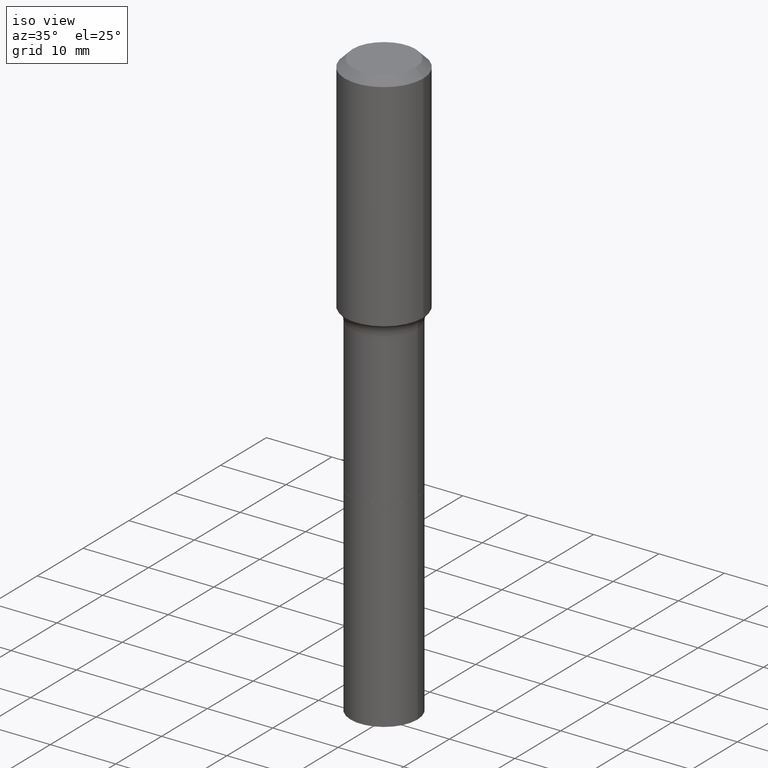
[diagram: clean part render]
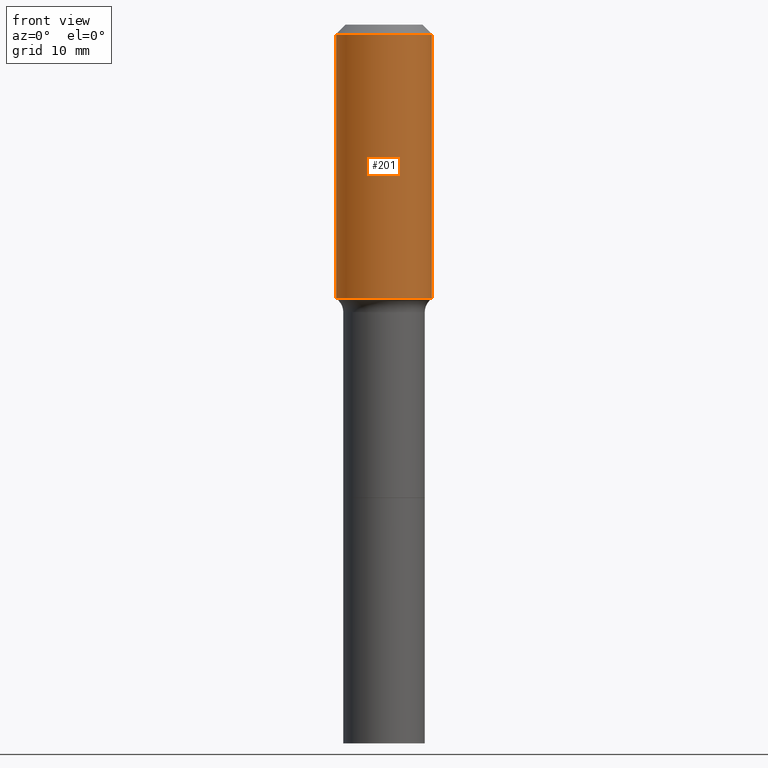
[diagram: tour spotlight — one face highlighted and labeled with its STEP entity id]
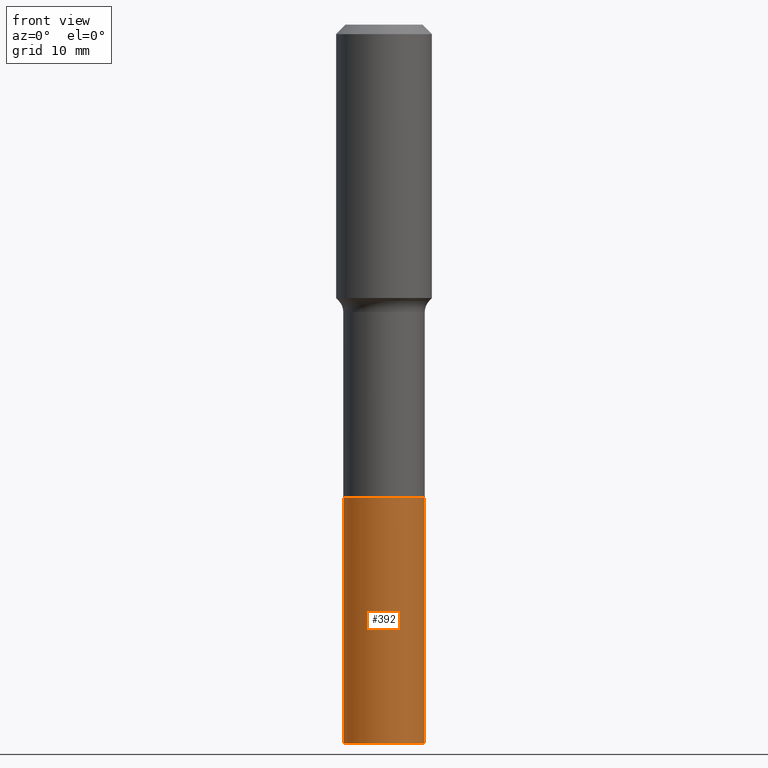
[diagram: tour spotlight — one face highlighted and labeled with its STEP entity id]
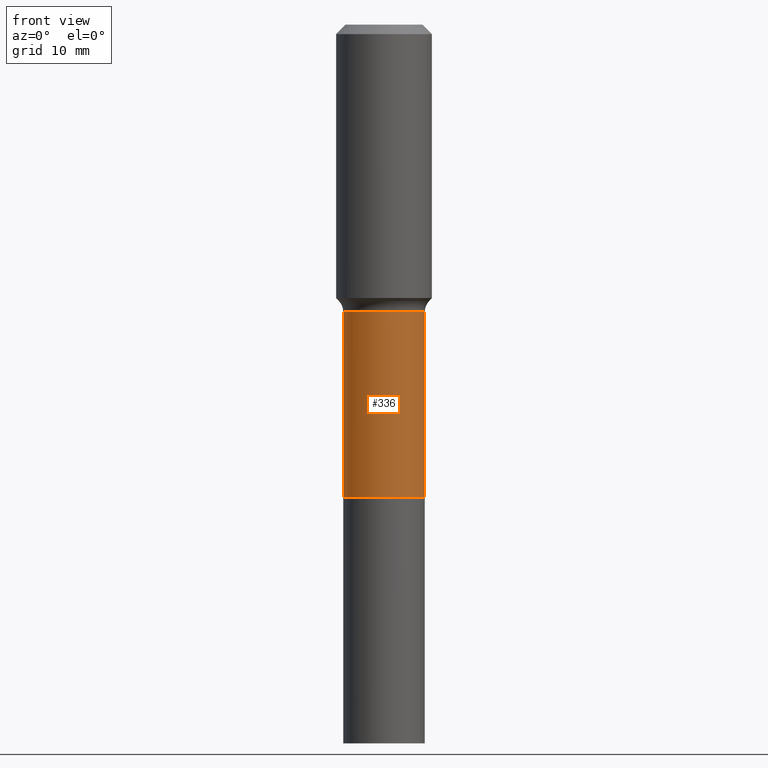
[diagram: tour spotlight — one face highlighted and labeled with its STEP entity id]
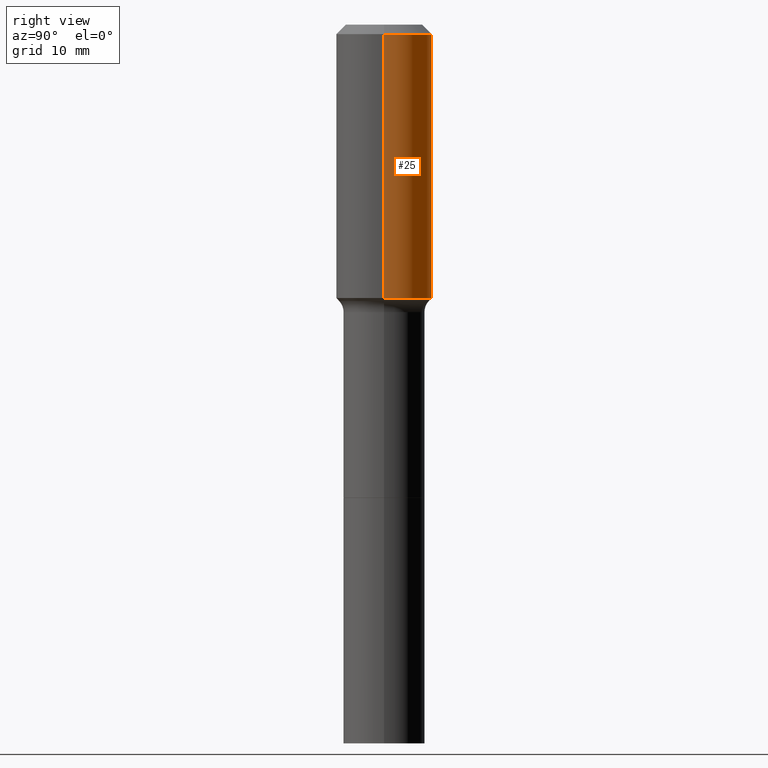
[diagram: tour spotlight — one face highlighted and labeled with its STEP entity id]
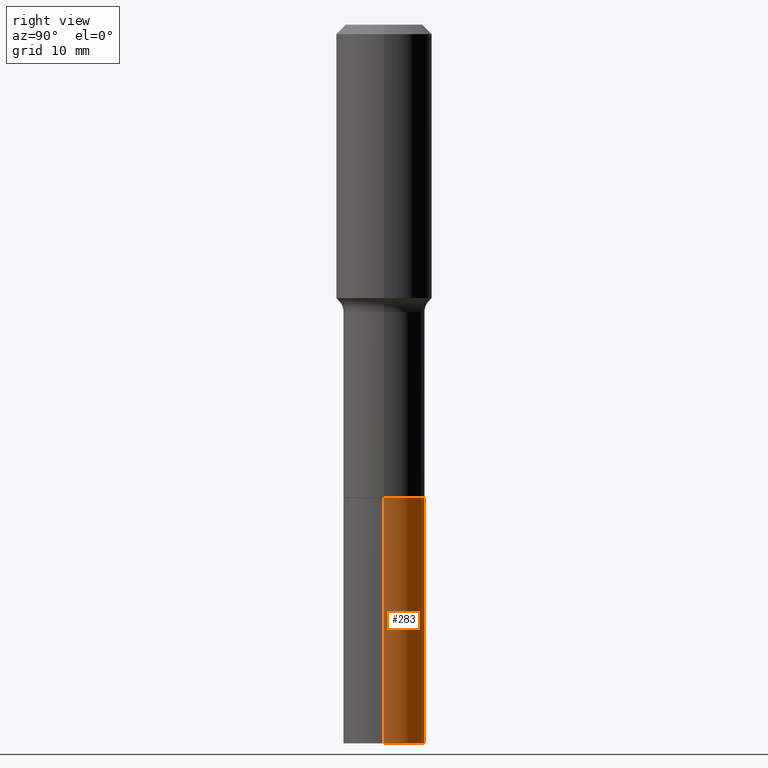
[diagram: tour spotlight — one face highlighted and labeled with its STEP entity id]
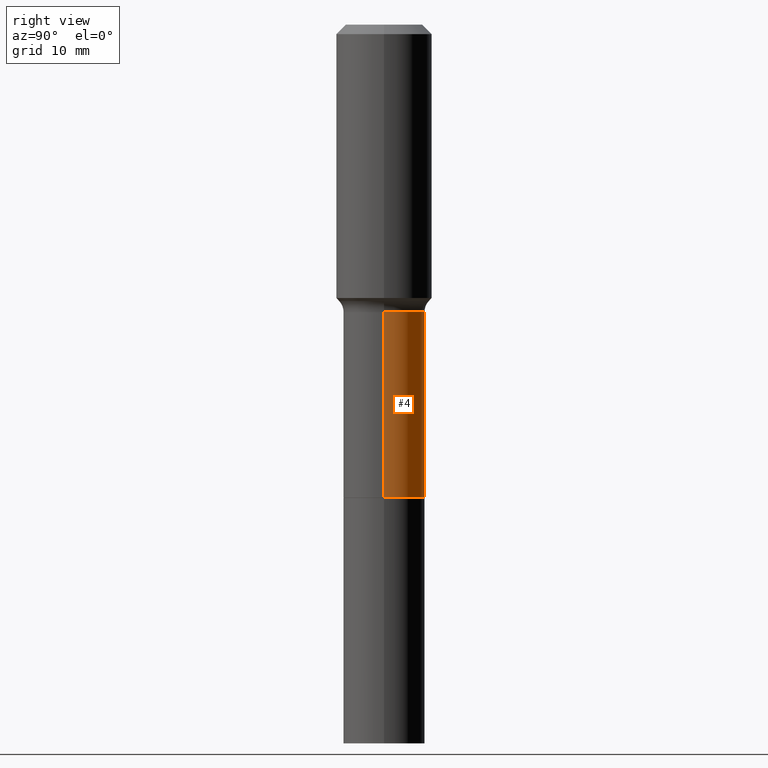
[diagram: tour spotlight — one face highlighted and labeled with its STEP entity id]
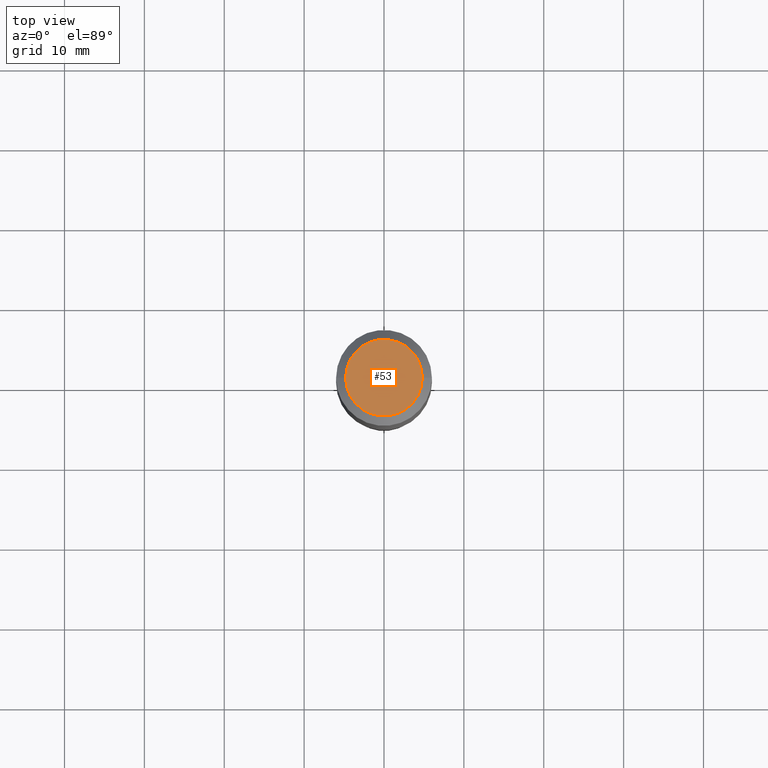
[diagram: tour spotlight — one face highlighted and labeled with its STEP entity id]
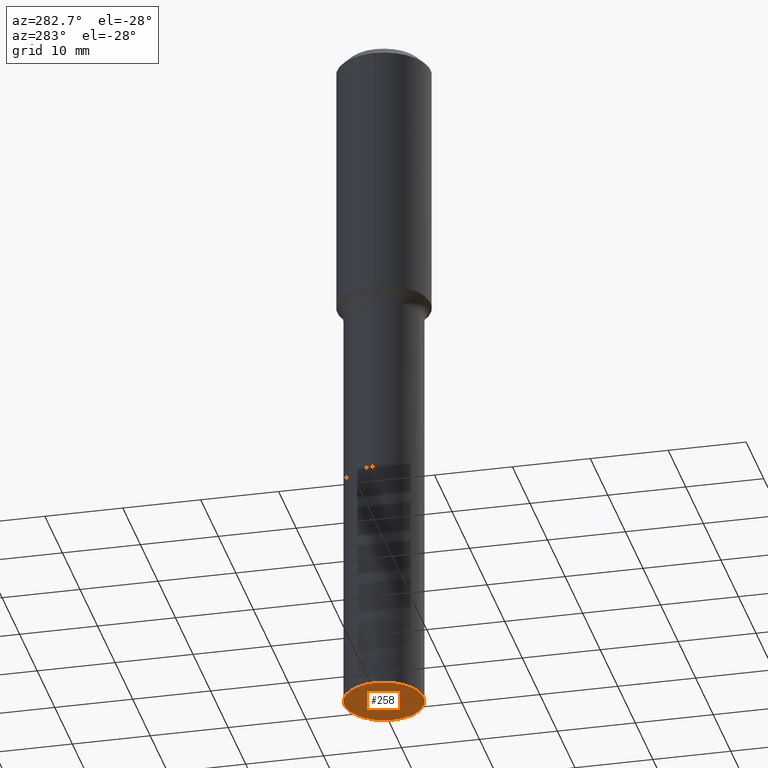
[diagram: tour spotlight — one face highlighted and labeled with its STEP entity id]
A machine part: a face-by-face anatomy tour. The part has 18 B-rep faces; the first image is the clean iso view, then the 8 largest visible faces are spotlighted one at a time (largest first), each with its STEP entity span.

Face 1 — front view, entity #201. In plain terms, the highlighted cylindrical surface (partial cylindrical patch) has radius 5.9995 mm, axis along (-0, 0, 1).
Definition (entity closure, byte-faithful):
#1 = DIRECTION ( 'NONE',  ( 1.000000000000000000, -6.982962677686266711E-15, 0.000000000000000000 ) ) ;
#22 = VECTOR ( 'NONE', #229, 39.37007874015748143 ) ;
#33 = CARTESIAN_POINT ( 'NONE',  ( -0.2362000000000000766, 1.678301941865357183E-15, -1.161852468318209177E-29 ) ) ;
#43 = VECTOR ( 'NONE', #322, 39.37007874015748143 ) ;
#51 = ORIENTED_EDGE ( 'NONE', *, *, #173, .T. ) ;
#63 = ORIENTED_EDGE ( 'NONE', *, *, #71, .F. ) ;
#71 = EDGE_CURVE ( 'NONE', #369, #244, #97, .T. ) ;
#73 = DIRECTION ( 'NONE',  ( -2.445468806185136597E-29, 3.491481338843145583E-15, 1.000000000000000000 ) ) ;
#74 = EDGE_LOOP ( 'NONE', ( #80, #51, #304, #63 ) ) ;
#78 = CARTESIAN_POINT ( 'NONE',  ( 0.2362000000000001598, -6.355282701014003885E-15, -1.347825309615930500 ) ) ;
#80 = ORIENTED_EDGE ( 'NONE', *, *, #178, .F. ) ;
#81 = CARTESIAN_POINT ( 'NONE',  ( 1.155239464041865331E-30, -1.649375784469511612E-16, -0.04724000000000027483 ) ) ;
#97 = CIRCLE ( 'NONE', #303, 0.2361999999999999933 ) ;
#111 = CARTESIAN_POINT ( 'NONE',  ( 3.296064750852582441E-29, -4.705906916544506571E-15, -1.347825309615930500 ) ) ;
#145 = CARTESIAN_POINT ( 'NONE',  ( 0.000000000000000000, 0.000000000000000000, 0.000000000000000000 ) ) ;
#156 = CARTESIAN_POINT ( 'NONE',  ( -0.2361999999999999933, -7.571203056303714610E-16, -0.04724000000000027483 ) ) ;
#173 = EDGE_CURVE ( 'NONE', #199, #325, #474, .T. ) ;
#178 = EDGE_CURVE ( 'NONE', #199, #369, #314, .T. ) ;
#199 = VERTEX_POINT ( 'NONE', #468 ) ;
#201 = ADVANCED_FACE ( 'NONE', ( #312 ), #345, .T. ) ;
#202 = CARTESIAN_POINT ( 'NONE',  ( 0.2362000000000000766, -1.649375784469496722E-15, 1.151752954443000368E-29 ) ) ;
#229 = DIRECTION ( 'NONE',  ( -2.445468806185136877E-29, 3.491481338843145188E-15, 1.000000000000000000 ) ) ;
#244 = VERTEX_POINT ( 'NONE', #514 ) ;
#270 = DIRECTION ( 'NONE',  ( 1.000000000000000000, -6.982962677686268288E-15, 0.000000000000000000 ) ) ;
#303 = AXIS2_PLACEMENT_3D ( 'NONE', #81, #364, #1 ) ;
#304 = ORIENTED_EDGE ( 'NONE', *, *, #373, .T. ) ;
#312 = FACE_OUTER_BOUND ( 'NONE', #74, .T. ) ;
#314 = LINE ( 'NONE', #33, #22 ) ;
#322 = DIRECTION ( 'NONE',  ( -2.445468806185136877E-29, 3.491481338843145188E-15, 1.000000000000000000 ) ) ;
#325 = VERTEX_POINT ( 'NONE', #78 ) ;
#345 = CYLINDRICAL_SURFACE ( 'NONE', #426, 0.2362000000000000766 ) ;
#364 = DIRECTION ( 'NONE',  ( -2.445468806185136597E-29, 3.491481338843145583E-15, 1.000000000000000000 ) ) ;
#367 = LINE ( 'NONE', #202, #43 ) ;
#369 = VERTEX_POINT ( 'NONE', #156 ) ;
#373 = EDGE_CURVE ( 'NONE', #325, #244, #367, .T. ) ;
#383 = DIRECTION ( 'NONE',  ( 1.000000000000000000, -6.982962677686266711E-15, 4.876176775795935793E-29 ) ) ;
#395 = AXIS2_PLACEMENT_3D ( 'NONE', #111, #73, #270 ) ;
#426 = AXIS2_PLACEMENT_3D ( 'NONE', #145, #517, #383 ) ;
#468 = CARTESIAN_POINT ( 'NONE',  ( -0.2362000000000001598, -3.027604974679148599E-15, -1.347825309615930500 ) ) ;
#474 = CIRCLE ( 'NONE', #395, 0.2362000000000001598 ) ;
#514 = CARTESIAN_POINT ( 'NONE',  ( 0.2361999999999999933, -1.814313362916447440E-15, -0.04724000000000027483 ) ) ;
#517 = DIRECTION ( 'NONE',  ( -2.445468806185136597E-29, 3.491481338843145583E-15, 1.000000000000000000 ) ) ;

Face 2 — front view, entity #392. In plain terms, the highlighted cylindrical surface (partial cylindrical patch) has radius 5.1003 mm, axis along (-0, 0, 1).
Definition (entity closure, byte-faithful):
#10 = DIRECTION ( 'NONE',  ( 1.000000000000000000, -6.982962677686268288E-15, 0.000000000000000000 ) ) ;
#14 = FACE_OUTER_BOUND ( 'NONE', #172, .T. ) ;
#19 = CARTESIAN_POINT ( 'NONE',  ( -0.2008000000000001173, -6.716412113177584804E-15, -2.332299999999999596 ) ) ;
#26 = AXIS2_PLACEMENT_3D ( 'NONE', #486, #198, #410 ) ;
#42 = ORIENTED_EDGE ( 'NONE', *, *, #309, .F. ) ;
#77 = ORIENTED_EDGE ( 'NONE', *, *, #164, .T. ) ;
#84 = VERTEX_POINT ( 'NONE', #155 ) ;
#96 = DIRECTION ( 'NONE',  ( -2.445468806185136877E-29, 3.491481338843145188E-15, 1.000000000000000000 ) ) ;
#101 = ORIENTED_EDGE ( 'NONE', *, *, #423, .T. ) ;
#122 = CIRCLE ( 'NONE', #26, 0.2008000000000000063 ) ;
#133 = CARTESIAN_POINT ( 'NONE',  ( 0.2008000000000002283, -1.377354473360231923E-14, -3.543299999999999894 ) ) ;
#155 = CARTESIAN_POINT ( 'NONE',  ( -0.2008000000000002283, -8.830504063847108456E-15, -3.543299999999999894 ) ) ;
#160 = ORIENTED_EDGE ( 'NONE', *, *, #479, .F. ) ;
#164 = EDGE_CURVE ( 'NONE', #329, #385, #476, .T. ) ;
#167 = DIRECTION ( 'NONE',  ( -2.445468806185136597E-29, 3.491481338843145583E-15, 1.000000000000000000 ) ) ;
#172 = EDGE_LOOP ( 'NONE', ( #160, #101, #77, #42 ) ) ;
#176 = CARTESIAN_POINT ( 'NONE',  ( -0.2008000000000000063, -8.830504063847110034E-15, -2.332299999999999596 ) ) ;
#198 = DIRECTION ( 'NONE',  ( -2.445468806185136597E-29, 3.491481338843145583E-15, 1.000000000000000000 ) ) ;
#236 = CARTESIAN_POINT ( 'NONE',  ( 5.703566896665592781E-29, -8.143181926583866613E-15, -2.332299999999999596 ) ) ;
#261 = DIRECTION ( 'NONE',  ( -2.445468806185136877E-29, 3.491481338843145188E-15, 1.000000000000000000 ) ) ;
#309 = EDGE_CURVE ( 'NONE', #481, #385, #122, .T. ) ;
#317 = CYLINDRICAL_SURFACE ( 'NONE', #334, 0.2008000000000001173 ) ;
#323 = CIRCLE ( 'NONE', #401, 0.2008000000000002283 ) ;
#327 = DIRECTION ( 'NONE',  ( 1.000000000000000000, -6.982962677686264344E-15, 0.000000000000000000 ) ) ;
#329 = VERTEX_POINT ( 'NONE', #133 ) ;
#334 = AXIS2_PLACEMENT_3D ( 'NONE', #236, #365, #10 ) ;
#365 = DIRECTION ( 'NONE',  ( -2.445468806185136597E-29, 3.491481338843145583E-15, 1.000000000000000000 ) ) ;
#375 = LINE ( 'NONE', #19, #432 ) ;
#385 = VERTEX_POINT ( 'NONE', #453 ) ;
#389 = CARTESIAN_POINT ( 'NONE',  ( 0.2008000000000001173, -9.545360832263270345E-15, -2.332299999999999596 ) ) ;
#392 = ADVANCED_FACE ( 'NONE', ( #14 ), #317, .T. ) ;
#401 = AXIS2_PLACEMENT_3D ( 'NONE', #404, #167, #327 ) ;
#404 = CARTESIAN_POINT ( 'NONE',  ( 8.665029620955794069E-29, -1.237136582792291707E-14, -3.543299999999999894 ) ) ;
#408 = VECTOR ( 'NONE', #261, 39.37007874015748143 ) ;
#410 = DIRECTION ( 'NONE',  ( 1.000000000000000000, -6.982962677686262766E-15, 0.000000000000000000 ) ) ;
#423 = EDGE_CURVE ( 'NONE', #84, #329, #323, .T. ) ;
#432 = VECTOR ( 'NONE', #96, 39.37007874015748143 ) ;
#453 = CARTESIAN_POINT ( 'NONE',  ( 0.2008000000000000063, -9.545360832263268767E-15, -2.332299999999999596 ) ) ;
#476 = LINE ( 'NONE', #389, #408 ) ;
#479 = EDGE_CURVE ( 'NONE', #84, #481, #375, .T. ) ;
#481 = VERTEX_POINT ( 'NONE', #176 ) ;
#486 = CARTESIAN_POINT ( 'NONE',  ( 5.703566896665592781E-29, -8.143181926583866613E-15, -2.332299999999999596 ) ) ;

Face 3 — front view, entity #336. In plain terms, the highlighted cylindrical surface (partial cylindrical patch) has radius 5.1003 mm, axis along (-0, 0, 1).
Definition (entity closure, byte-faithful):
#17 = CIRCLE ( 'NONE', #255, 0.2007999999999999785 ) ;
#36 = CARTESIAN_POINT ( 'NONE',  ( 0.2007999999999999230, -6.350655407221791807E-15, -1.417300000000000004 ) ) ;
#47 = VERTEX_POINT ( 'NONE', #297 ) ;
#49 = EDGE_CURVE ( 'NONE', #230, #47, #17, .T. ) ;
#50 = CARTESIAN_POINT ( 'NONE',  ( -0.2007999999999999508, 1.426769813406280823E-15, -9.877221661231847184E-30 ) ) ;
#52 = DIRECTION ( 'NONE',  ( -2.445468806185136877E-29, 3.491481338843145188E-15, 1.000000000000000000 ) ) ;
#65 = CIRCLE ( 'NONE', #411, 0.2007999999999999230 ) ;
#82 = CARTESIAN_POINT ( 'NONE',  ( 0.2007999999999999508, -1.402178905679401956E-15, 9.791362965798235507E-30 ) ) ;
#90 = DIRECTION ( 'NONE',  ( 1.000000000000000000, -6.982962677686266711E-15, 4.876176775795935232E-29 ) ) ;
#100 = DIRECTION ( 'NONE',  ( -2.445468806185136597E-29, 3.491481338843145583E-15, 1.000000000000000000 ) ) ;
#116 = CARTESIAN_POINT ( 'NONE',  ( -0.2007999999999999230, -5.118186530322137150E-15, -1.417300000000000004 ) ) ;
#127 = LINE ( 'NONE', #50, #206 ) ;
#161 = DIRECTION ( 'NONE',  ( 1.000000000000000000, -6.982962677686265133E-15, 0.000000000000000000 ) ) ;
#183 = VERTEX_POINT ( 'NONE', #36 ) ;
#196 = CARTESIAN_POINT ( 'NONE',  ( 0.000000000000000000, 0.000000000000000000, 0.000000000000000000 ) ) ;
#206 = VECTOR ( 'NONE', #52, 39.37007874015748143 ) ;
#208 = DIRECTION ( 'NONE',  ( -2.445468806185136597E-29, 3.491481338843145583E-15, 1.000000000000000000 ) ) ;
#213 = EDGE_LOOP ( 'NONE', ( #435, #405, #477, #501 ) ) ;
#230 = VERTEX_POINT ( 'NONE', #386 ) ;
#240 = DIRECTION ( 'NONE',  ( -2.445468806185136877E-29, 3.491481338843145188E-15, 1.000000000000000000 ) ) ;
#253 = VECTOR ( 'NONE', #240, 39.37007874015748143 ) ;
#255 = AXIS2_PLACEMENT_3D ( 'NONE', #460, #100, #458 ) ;
#268 = AXIS2_PLACEMENT_3D ( 'NONE', #196, #281, #90 ) ;
#273 = CARTESIAN_POINT ( 'NONE',  ( 3.465962939006193759E-29, -4.948476501542390442E-15, -1.417300000000000004 ) ) ;
#281 = DIRECTION ( 'NONE',  ( -2.445468806185136597E-29, 3.491481338843145583E-15, 1.000000000000000000 ) ) ;
#297 = CARTESIAN_POINT ( 'NONE',  ( 0.2007999999999999785, -9.543615091593848052E-15, -2.331799999999999873 ) ) ;
#324 = EDGE_CURVE ( 'NONE', #362, #183, #65, .T. ) ;
#336 = ADVANCED_FACE ( 'NONE', ( #440 ), #407, .T. ) ;
#341 = EDGE_CURVE ( 'NONE', #230, #362, #127, .T. ) ;
#362 = VERTEX_POINT ( 'NONE', #116 ) ;
#386 = CARTESIAN_POINT ( 'NONE',  ( -0.2007999999999999785, -5.118186530322137150E-15, -2.331799999999999873 ) ) ;
#402 = LINE ( 'NONE', #82, #253 ) ;
#405 = ORIENTED_EDGE ( 'NONE', *, *, #49, .T. ) ;
#406 = EDGE_CURVE ( 'NONE', #47, #183, #402, .T. ) ;
#407 = CYLINDRICAL_SURFACE ( 'NONE', #268, 0.2007999999999999508 ) ;
#411 = AXIS2_PLACEMENT_3D ( 'NONE', #273, #208, #161 ) ;
#435 = ORIENTED_EDGE ( 'NONE', *, *, #341, .F. ) ;
#440 = FACE_OUTER_BOUND ( 'NONE', #213, .T. ) ;
#458 = DIRECTION ( 'NONE',  ( 1.000000000000000000, -6.982962677686263555E-15, 0.000000000000000000 ) ) ;
#460 = CARTESIAN_POINT ( 'NONE',  ( 5.702344162262501100E-29, -8.141436185914445899E-15, -2.331799999999999873 ) ) ;
#477 = ORIENTED_EDGE ( 'NONE', *, *, #406, .T. ) ;
#501 = ORIENTED_EDGE ( 'NONE', *, *, #324, .F. ) ;

Face 4 — right view, entity #25. In plain terms, the highlighted cylindrical surface (partial cylindrical patch) has radius 5.9995 mm, axis along (-0, 0, 1).
Definition (entity closure, byte-faithful):
#5 = CARTESIAN_POINT ( 'NONE',  ( 3.296064750852582441E-29, -4.705906916544506571E-15, -1.347825309615930500 ) ) ;
#9 = ORIENTED_EDGE ( 'NONE', *, *, #274, .F. ) ;
#22 = VECTOR ( 'NONE', #229, 39.37007874015748143 ) ;
#25 = ADVANCED_FACE ( 'NONE', ( #421 ), #335, .T. ) ;
#33 = CARTESIAN_POINT ( 'NONE',  ( -0.2362000000000000766, 1.678301941865357183E-15, -1.161852468318209177E-29 ) ) ;
#35 = DIRECTION ( 'NONE',  ( -2.445468806185136597E-29, 3.491481338843145583E-15, 1.000000000000000000 ) ) ;
#43 = VECTOR ( 'NONE', #322, 39.37007874015748143 ) ;
#78 = CARTESIAN_POINT ( 'NONE',  ( 0.2362000000000001598, -6.355282701014003885E-15, -1.347825309615930500 ) ) ;
#129 = CARTESIAN_POINT ( 'NONE',  ( 0.000000000000000000, 0.000000000000000000, 0.000000000000000000 ) ) ;
#130 = AXIS2_PLACEMENT_3D ( 'NONE', #129, #259, #286 ) ;
#144 = CIRCLE ( 'NONE', #437, 0.2361999999999999933 ) ;
#156 = CARTESIAN_POINT ( 'NONE',  ( -0.2361999999999999933, -7.571203056303714610E-16, -0.04724000000000027483 ) ) ;
#178 = EDGE_CURVE ( 'NONE', #199, #369, #314, .T. ) ;
#190 = DIRECTION ( 'NONE',  ( 1.000000000000000000, -6.982962677686266711E-15, 0.000000000000000000 ) ) ;
#199 = VERTEX_POINT ( 'NONE', #468 ) ;
#202 = CARTESIAN_POINT ( 'NONE',  ( 0.2362000000000000766, -1.649375784469496722E-15, 1.151752954443000368E-29 ) ) ;
#229 = DIRECTION ( 'NONE',  ( -2.445468806185136877E-29, 3.491481338843145188E-15, 1.000000000000000000 ) ) ;
#244 = VERTEX_POINT ( 'NONE', #514 ) ;
#259 = DIRECTION ( 'NONE',  ( -2.445468806185136597E-29, 3.491481338843145583E-15, 1.000000000000000000 ) ) ;
#274 = EDGE_CURVE ( 'NONE', #244, #369, #144, .T. ) ;
#282 = ORIENTED_EDGE ( 'NONE', *, *, #178, .T. ) ;
#284 = DIRECTION ( 'NONE',  ( 1.000000000000000000, -6.982962677686268288E-15, 0.000000000000000000 ) ) ;
#286 = DIRECTION ( 'NONE',  ( 1.000000000000000000, -6.982962677686266711E-15, 4.876176775795935793E-29 ) ) ;
#308 = CARTESIAN_POINT ( 'NONE',  ( 1.155239464041865331E-30, -1.649375784469511612E-16, -0.04724000000000027483 ) ) ;
#313 = AXIS2_PLACEMENT_3D ( 'NONE', #5, #493, #284 ) ;
#314 = LINE ( 'NONE', #33, #22 ) ;
#322 = DIRECTION ( 'NONE',  ( -2.445468806185136877E-29, 3.491481338843145188E-15, 1.000000000000000000 ) ) ;
#325 = VERTEX_POINT ( 'NONE', #78 ) ;
#335 = CYLINDRICAL_SURFACE ( 'NONE', #130, 0.2362000000000000766 ) ;
#367 = LINE ( 'NONE', #202, #43 ) ;
#369 = VERTEX_POINT ( 'NONE', #156 ) ;
#373 = EDGE_CURVE ( 'NONE', #325, #244, #367, .T. ) ;
#382 = ORIENTED_EDGE ( 'NONE', *, *, #373, .F. ) ;
#421 = FACE_OUTER_BOUND ( 'NONE', #431, .T. ) ;
#429 = EDGE_CURVE ( 'NONE', #325, #199, #478, .T. ) ;
#431 = EDGE_LOOP ( 'NONE', ( #506, #282, #9, #382 ) ) ;
#437 = AXIS2_PLACEMENT_3D ( 'NONE', #308, #35, #190 ) ;
#468 = CARTESIAN_POINT ( 'NONE',  ( -0.2362000000000001598, -3.027604974679148599E-15, -1.347825309615930500 ) ) ;
#478 = CIRCLE ( 'NONE', #313, 0.2362000000000001598 ) ;
#493 = DIRECTION ( 'NONE',  ( -2.445468806185136597E-29, 3.491481338843145583E-15, 1.000000000000000000 ) ) ;
#506 = ORIENTED_EDGE ( 'NONE', *, *, #429, .T. ) ;
#514 = CARTESIAN_POINT ( 'NONE',  ( 0.2361999999999999933, -1.814313362916447440E-15, -0.04724000000000027483 ) ) ;

Face 5 — right view, entity #283. In plain terms, the highlighted cylindrical surface (partial cylindrical patch) has radius 5.1003 mm, axis along (-0, 0, 1).
Definition (entity closure, byte-faithful):
#19 = CARTESIAN_POINT ( 'NONE',  ( -0.2008000000000001173, -6.716412113177584804E-15, -2.332299999999999596 ) ) ;
#44 = DIRECTION ( 'NONE',  ( -2.445468806185136597E-29, 3.491481338843145583E-15, 1.000000000000000000 ) ) ;
#84 = VERTEX_POINT ( 'NONE', #155 ) ;
#92 = AXIS2_PLACEMENT_3D ( 'NONE', #231, #246, #205 ) ;
#96 = DIRECTION ( 'NONE',  ( -2.445468806185136877E-29, 3.491481338843145188E-15, 1.000000000000000000 ) ) ;
#119 = CARTESIAN_POINT ( 'NONE',  ( 5.703566896665592781E-29, -8.143181926583866613E-15, -2.332299999999999596 ) ) ;
#123 = DIRECTION ( 'NONE',  ( 1.000000000000000000, -6.982962677686268288E-15, 0.000000000000000000 ) ) ;
#133 = CARTESIAN_POINT ( 'NONE',  ( 0.2008000000000002283, -1.377354473360231923E-14, -3.543299999999999894 ) ) ;
#155 = CARTESIAN_POINT ( 'NONE',  ( -0.2008000000000002283, -8.830504063847108456E-15, -3.543299999999999894 ) ) ;
#164 = EDGE_CURVE ( 'NONE', #329, #385, #476, .T. ) ;
#176 = CARTESIAN_POINT ( 'NONE',  ( -0.2008000000000000063, -8.830504063847110034E-15, -2.332299999999999596 ) ) ;
#180 = CIRCLE ( 'NONE', #92, 0.2008000000000000063 ) ;
#205 = DIRECTION ( 'NONE',  ( 1.000000000000000000, -6.982962677686262766E-15, 0.000000000000000000 ) ) ;
#231 = CARTESIAN_POINT ( 'NONE',  ( 5.703566896665592781E-29, -8.143181926583866613E-15, -2.332299999999999596 ) ) ;
#243 = DIRECTION ( 'NONE',  ( 1.000000000000000000, -6.982962677686264344E-15, 0.000000000000000000 ) ) ;
#246 = DIRECTION ( 'NONE',  ( -2.445468806185136597E-29, 3.491481338843145583E-15, 1.000000000000000000 ) ) ;
#260 = EDGE_LOOP ( 'NONE', ( #399, #319, #344, #393 ) ) ;
#261 = DIRECTION ( 'NONE',  ( -2.445468806185136877E-29, 3.491481338843145188E-15, 1.000000000000000000 ) ) ;
#279 = CARTESIAN_POINT ( 'NONE',  ( 8.665029620955794069E-29, -1.237136582792291707E-14, -3.543299999999999894 ) ) ;
#283 = ADVANCED_FACE ( 'NONE', ( #470 ), #351, .T. ) ;
#299 = EDGE_CURVE ( 'NONE', #329, #84, #388, .T. ) ;
#319 = ORIENTED_EDGE ( 'NONE', *, *, #479, .T. ) ;
#329 = VERTEX_POINT ( 'NONE', #133 ) ;
#344 = ORIENTED_EDGE ( 'NONE', *, *, #356, .F. ) ;
#351 = CYLINDRICAL_SURFACE ( 'NONE', #512, 0.2008000000000001173 ) ;
#356 = EDGE_CURVE ( 'NONE', #385, #481, #180, .T. ) ;
#375 = LINE ( 'NONE', #19, #432 ) ;
#385 = VERTEX_POINT ( 'NONE', #453 ) ;
#388 = CIRCLE ( 'NONE', #475, 0.2008000000000002283 ) ;
#389 = CARTESIAN_POINT ( 'NONE',  ( 0.2008000000000001173, -9.545360832263270345E-15, -2.332299999999999596 ) ) ;
#393 = ORIENTED_EDGE ( 'NONE', *, *, #164, .F. ) ;
#399 = ORIENTED_EDGE ( 'NONE', *, *, #299, .T. ) ;
#408 = VECTOR ( 'NONE', #261, 39.37007874015748143 ) ;
#432 = VECTOR ( 'NONE', #96, 39.37007874015748143 ) ;
#444 = DIRECTION ( 'NONE',  ( -2.445468806185136597E-29, 3.491481338843145583E-15, 1.000000000000000000 ) ) ;
#453 = CARTESIAN_POINT ( 'NONE',  ( 0.2008000000000000063, -9.545360832263268767E-15, -2.332299999999999596 ) ) ;
#470 = FACE_OUTER_BOUND ( 'NONE', #260, .T. ) ;
#475 = AXIS2_PLACEMENT_3D ( 'NONE', #279, #444, #243 ) ;
#476 = LINE ( 'NONE', #389, #408 ) ;
#479 = EDGE_CURVE ( 'NONE', #84, #481, #375, .T. ) ;
#481 = VERTEX_POINT ( 'NONE', #176 ) ;
#512 = AXIS2_PLACEMENT_3D ( 'NONE', #119, #44, #123 ) ;

Face 6 — right view, entity #4. In plain terms, the highlighted cylindrical surface (partial cylindrical patch) has radius 5.1003 mm, axis along (-0, 0, 1).
Definition (entity closure, byte-faithful):
#4 = ADVANCED_FACE ( 'NONE', ( #454 ), #495, .T. ) ;
#36 = CARTESIAN_POINT ( 'NONE',  ( 0.2007999999999999230, -6.350655407221791807E-15, -1.417300000000000004 ) ) ;
#47 = VERTEX_POINT ( 'NONE', #297 ) ;
#50 = CARTESIAN_POINT ( 'NONE',  ( -0.2007999999999999508, 1.426769813406280823E-15, -9.877221661231847184E-30 ) ) ;
#52 = DIRECTION ( 'NONE',  ( -2.445468806185136877E-29, 3.491481338843145188E-15, 1.000000000000000000 ) ) ;
#56 = DIRECTION ( 'NONE',  ( 1.000000000000000000, -6.982962677686266711E-15, 4.876176775795935232E-29 ) ) ;
#82 = CARTESIAN_POINT ( 'NONE',  ( 0.2007999999999999508, -1.402178905679401956E-15, 9.791362965798235507E-30 ) ) ;
#104 = DIRECTION ( 'NONE',  ( -2.445468806185136597E-29, 3.491481338843145583E-15, 1.000000000000000000 ) ) ;
#116 = CARTESIAN_POINT ( 'NONE',  ( -0.2007999999999999230, -5.118186530322137150E-15, -1.417300000000000004 ) ) ;
#127 = LINE ( 'NONE', #50, #206 ) ;
#136 = EDGE_CURVE ( 'NONE', #183, #362, #419, .T. ) ;
#146 = DIRECTION ( 'NONE',  ( 1.000000000000000000, -6.982962677686263555E-15, 0.000000000000000000 ) ) ;
#183 = VERTEX_POINT ( 'NONE', #36 ) ;
#206 = VECTOR ( 'NONE', #52, 39.37007874015748143 ) ;
#218 = CARTESIAN_POINT ( 'NONE',  ( 3.465962939006193759E-29, -4.948476501542390442E-15, -1.417300000000000004 ) ) ;
#230 = VERTEX_POINT ( 'NONE', #386 ) ;
#240 = DIRECTION ( 'NONE',  ( -2.445468806185136877E-29, 3.491481338843145188E-15, 1.000000000000000000 ) ) ;
#253 = VECTOR ( 'NONE', #240, 39.37007874015748143 ) ;
#257 = AXIS2_PLACEMENT_3D ( 'NONE', #218, #338, #296 ) ;
#262 = CARTESIAN_POINT ( 'NONE',  ( 5.702344162262501100E-29, -8.141436185914445899E-15, -2.331799999999999873 ) ) ;
#265 = EDGE_CURVE ( 'NONE', #47, #230, #463, .T. ) ;
#278 = ORIENTED_EDGE ( 'NONE', *, *, #406, .F. ) ;
#288 = AXIS2_PLACEMENT_3D ( 'NONE', #262, #425, #146 ) ;
#296 = DIRECTION ( 'NONE',  ( 1.000000000000000000, -6.982962677686265133E-15, 0.000000000000000000 ) ) ;
#297 = CARTESIAN_POINT ( 'NONE',  ( 0.2007999999999999785, -9.543615091593848052E-15, -2.331799999999999873 ) ) ;
#332 = EDGE_LOOP ( 'NONE', ( #439, #403, #415, #278 ) ) ;
#338 = DIRECTION ( 'NONE',  ( -2.445468806185136597E-29, 3.491481338843145583E-15, 1.000000000000000000 ) ) ;
#341 = EDGE_CURVE ( 'NONE', #230, #362, #127, .T. ) ;
#362 = VERTEX_POINT ( 'NONE', #116 ) ;
#386 = CARTESIAN_POINT ( 'NONE',  ( -0.2007999999999999785, -5.118186530322137150E-15, -2.331799999999999873 ) ) ;
#387 = AXIS2_PLACEMENT_3D ( 'NONE', #465, #104, #56 ) ;
#402 = LINE ( 'NONE', #82, #253 ) ;
#403 = ORIENTED_EDGE ( 'NONE', *, *, #341, .T. ) ;
#406 = EDGE_CURVE ( 'NONE', #47, #183, #402, .T. ) ;
#415 = ORIENTED_EDGE ( 'NONE', *, *, #136, .F. ) ;
#419 = CIRCLE ( 'NONE', #257, 0.2007999999999999230 ) ;
#425 = DIRECTION ( 'NONE',  ( -2.445468806185136597E-29, 3.491481338843145583E-15, 1.000000000000000000 ) ) ;
#439 = ORIENTED_EDGE ( 'NONE', *, *, #265, .T. ) ;
#454 = FACE_OUTER_BOUND ( 'NONE', #332, .T. ) ;
#463 = CIRCLE ( 'NONE', #288, 0.2007999999999999785 ) ;
#465 = CARTESIAN_POINT ( 'NONE',  ( 0.000000000000000000, 0.000000000000000000, 0.000000000000000000 ) ) ;
#495 = CYLINDRICAL_SURFACE ( 'NONE', #387, 0.2007999999999999508 ) ;

Face 7 — top view, entity #53. In plain terms, the highlighted planar face has unit normal (0, -0, -1).
Definition (entity closure, byte-faithful):
#3 = ORIENTED_EDGE ( 'NONE', *, *, #294, .T. ) ;
#15 = CARTESIAN_POINT ( 'NONE',  ( -9.427742298522546243E-47, 1.346031739168365344E-32, 3.855188123715862256E-18 ) ) ;
#41 = EDGE_CURVE ( 'NONE', #254, #219, #194, .T. ) ;
#53 = ADVANCED_FACE ( 'NONE', ( #295 ), #377, .F. ) ;
#85 = CARTESIAN_POINT ( 'NONE',  ( -9.427742298522546243E-47, 1.346031739168365344E-32, 3.855188123715862256E-18 ) ) ;
#109 = DIRECTION ( 'NONE',  ( 2.438088387897960049E-29, -3.491481338843145188E-15, -1.000000000000000000 ) ) ;
#112 = CIRCLE ( 'NONE', #214, 0.1889600000000000168 ) ;
#139 = DIRECTION ( 'NONE',  ( 1.000000000000000000, -6.982962677686266711E-15, 4.876185090822587894E-29 ) ) ;
#166 = EDGE_LOOP ( 'NONE', ( #412, #3 ) ) ;
#194 = CIRCLE ( 'NONE', #498, 0.1889600000000000168 ) ;
#214 = AXIS2_PLACEMENT_3D ( 'NONE', #85, #482, #321 ) ;
#219 = VERTEX_POINT ( 'NONE', #227 ) ;
#222 = CARTESIAN_POINT ( 'NONE',  ( -0.1889600000000000168, 1.401969416799070942E-15, 3.855188123706346622E-18 ) ) ;
#227 = CARTESIAN_POINT ( 'NONE',  ( 0.1889600000000000168, -1.540873453589747738E-15, 3.855188123725863225E-18 ) ) ;
#254 = VERTEX_POINT ( 'NONE', #222 ) ;
#294 = EDGE_CURVE ( 'NONE', #219, #254, #112, .T. ) ;
#295 = FACE_OUTER_BOUND ( 'NONE', #166, .T. ) ;
#302 = AXIS2_PLACEMENT_3D ( 'NONE', #340, #109, #358 ) ;
#321 = DIRECTION ( 'NONE',  ( 1.000000000000000000, -6.982962677686266711E-15, 4.876185090822587894E-29 ) ) ;
#340 = CARTESIAN_POINT ( 'NONE',  ( -4.713871149261273121E-47, 6.730158695841826722E-33, 1.927594061857931128E-18 ) ) ;
#358 = DIRECTION ( 'NONE',  ( -1.000000000000000000, 6.982962677686265922E-15, -4.876176775795935793E-29 ) ) ;
#377 = PLANE ( 'NONE',  #302 ) ;
#412 = ORIENTED_EDGE ( 'NONE', *, *, #41, .T. ) ;
#482 = DIRECTION ( 'NONE',  ( -2.445468806185136597E-29, 3.491481338843145583E-15, 1.000000000000000000 ) ) ;
#498 = AXIS2_PLACEMENT_3D ( 'NONE', #15, #500, #139 ) ;
#500 = DIRECTION ( 'NONE',  ( -2.445468806185136597E-29, 3.491481338843145583E-15, 1.000000000000000000 ) ) ;

Face 8 — auxiliary view, entity #258. In plain terms, the highlighted planar face has unit normal (0, -0, -1).
Definition (entity closure, byte-faithful):
#23 = AXIS2_PLACEMENT_3D ( 'NONE', #186, #347, #349 ) ;
#29 = ORIENTED_EDGE ( 'NONE', *, *, #299, .F. ) ;
#30 = PLANE ( 'NONE',  #23 ) ;
#84 = VERTEX_POINT ( 'NONE', #155 ) ;
#133 = CARTESIAN_POINT ( 'NONE',  ( 0.2008000000000002283, -1.377354473360231923E-14, -3.543299999999999894 ) ) ;
#155 = CARTESIAN_POINT ( 'NONE',  ( -0.2008000000000002283, -8.830504063847108456E-15, -3.543299999999999894 ) ) ;
#167 = DIRECTION ( 'NONE',  ( -2.445468806185136597E-29, 3.491481338843145583E-15, 1.000000000000000000 ) ) ;
#186 = CARTESIAN_POINT ( 'NONE',  ( 8.665029620955794069E-29, -1.237136582792291707E-14, -3.543299999999999894 ) ) ;
#187 = FACE_OUTER_BOUND ( 'NONE', #518, .T. ) ;
#243 = DIRECTION ( 'NONE',  ( 1.000000000000000000, -6.982962677686264344E-15, 0.000000000000000000 ) ) ;
#258 = ADVANCED_FACE ( 'NONE', ( #187 ), #30, .T. ) ;
#279 = CARTESIAN_POINT ( 'NONE',  ( 8.665029620955794069E-29, -1.237136582792291707E-14, -3.543299999999999894 ) ) ;
#299 = EDGE_CURVE ( 'NONE', #329, #84, #388, .T. ) ;
#323 = CIRCLE ( 'NONE', #401, 0.2008000000000002283 ) ;
#327 = DIRECTION ( 'NONE',  ( 1.000000000000000000, -6.982962677686264344E-15, 0.000000000000000000 ) ) ;
#329 = VERTEX_POINT ( 'NONE', #133 ) ;
#347 = DIRECTION ( 'NONE',  ( 2.438088387897960049E-29, -3.491481338843145188E-15, -1.000000000000000000 ) ) ;
#349 = DIRECTION ( 'NONE',  ( -1.000000000000000000, 6.982962677686265922E-15, -4.876176775795935793E-29 ) ) ;
#388 = CIRCLE ( 'NONE', #475, 0.2008000000000002283 ) ;
#401 = AXIS2_PLACEMENT_3D ( 'NONE', #404, #167, #327 ) ;
#404 = CARTESIAN_POINT ( 'NONE',  ( 8.665029620955794069E-29, -1.237136582792291707E-14, -3.543299999999999894 ) ) ;
#423 = EDGE_CURVE ( 'NONE', #84, #329, #323, .T. ) ;
#444 = DIRECTION ( 'NONE',  ( -2.445468806185136597E-29, 3.491481338843145583E-15, 1.000000000000000000 ) ) ;
#475 = AXIS2_PLACEMENT_3D ( 'NONE', #279, #444, #243 ) ;
#484 = ORIENTED_EDGE ( 'NONE', *, *, #423, .F. ) ;
#518 = EDGE_LOOP ( 'NONE', ( #29, #484 ) ) ;